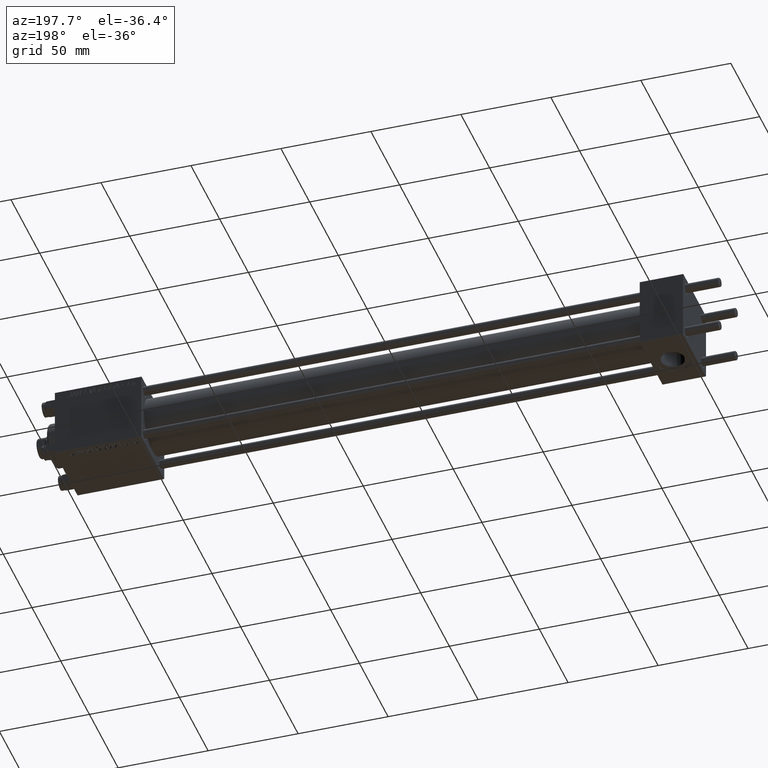
[diagram: clean part render]
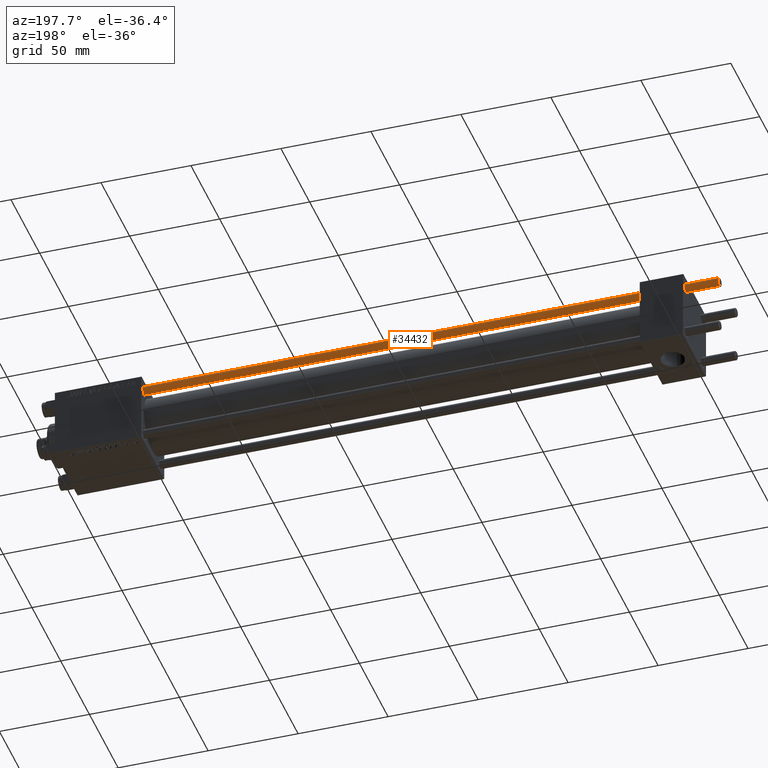
[diagram: same view with one face highlighted and labeled with its STEP entity id]
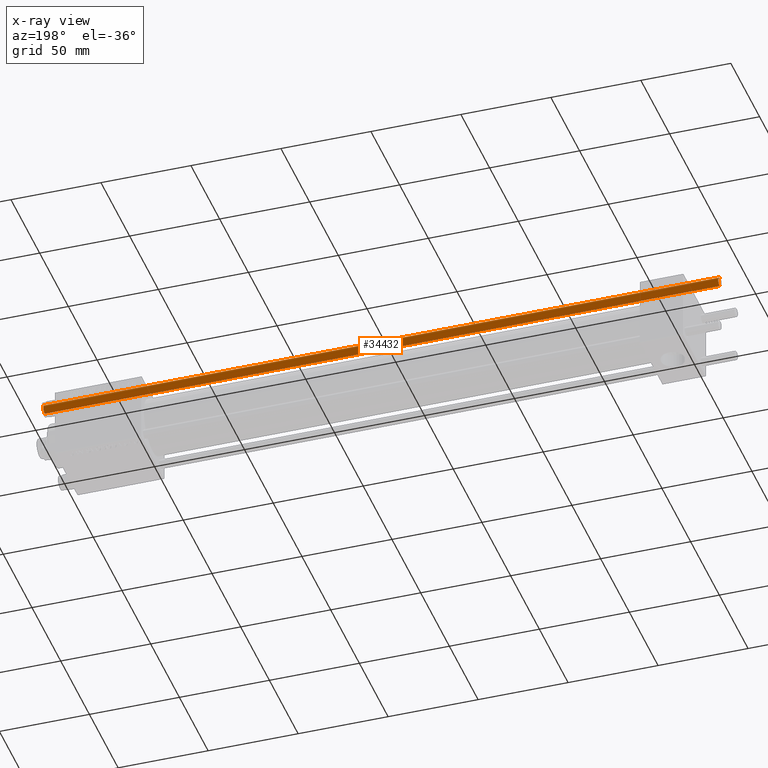
[diagram: x-ray of the same camera — body ghosted, the highlighted face saturated]
A machine part, auxiliary view. The second image highlights one B-rep face of the part: STEP entity #34432.
The next image is the same camera in x-ray: the body ghosted, the highlighted face saturated — about 0% of this face is hidden behind the body in this view.
In plain terms, the highlighted cylindrical surface (edge-blend (fillet) strip) has radius 2.5 mm, axis along (-1, -0, -0).
Its self-contained STEP definition (entity closure, byte-faithful):
#29 = FACE_OUTER_BOUND ( 'NONE', #4673, .T. ) ;
#2603 = AXIS2_PLACEMENT_3D ( 'NONE', #15418, #26752, #19688 ) ;
#4673 = EDGE_LOOP ( 'NONE', ( #25441, #46949, #20816, #23322 ) ) ;
#8013 = DIRECTION ( 'NONE',  ( -0.000000000000000000, -0.000000000000000000, 1.000000000000000000 ) ) ;
#9291 = VERTEX_POINT ( 'NONE', #12544 ) ;
#9445 = EDGE_CURVE ( 'NONE', #34194, #27214, #9513, .T. ) ;
#9513 = LINE ( 'NONE', #40209, #12189 ) ;
#9853 = CIRCLE ( 'NONE', #2603, 2.500000000000000000 ) ;
#12189 = VECTOR ( 'NONE', #21081, 1000.000000000000000 ) ;
#12544 = CARTESIAN_POINT ( 'NONE',  ( -2.500000000000000000, 0.000000000000000000, 0.4999999999999449329 ) ) ;
#15418 = CARTESIAN_POINT ( 'NONE',  ( 0.000000000000000000, 0.000000000000000000, 375.5000000000000568 ) ) ;
#15552 = DIRECTION ( 'NONE',  ( 1.000000000000000000, 0.000000000000000000, 0.000000000000000000 ) ) ;
#16126 = CARTESIAN_POINT ( 'NONE',  ( -2.500000000000000000, 0.000000000000000000, 376.0000000000000000 ) ) ;
#19688 = DIRECTION ( 'NONE',  ( 1.000000000000000000, 0.000000000000000000, 0.000000000000000000 ) ) ;
#20816 = ORIENTED_EDGE ( 'NONE', *, *, #38730, .T. ) ;
#21081 = DIRECTION ( 'NONE',  ( -0.000000000000000000, -0.000000000000000000, -1.000000000000000000 ) ) ;
#22244 = EDGE_CURVE ( 'NONE', #25066, #34194, #9853, .T. ) ;
#23322 = ORIENTED_EDGE ( 'NONE', *, *, #32080, .F. ) ;
#25066 = VERTEX_POINT ( 'NONE', #30690 ) ;
#25441 = ORIENTED_EDGE ( 'NONE', *, *, #22244, .T. ) ;
#26127 = VECTOR ( 'NONE', #46361, 1000.000000000000000 ) ;
#26704 = CYLINDRICAL_SURFACE ( 'NONE', #47909, 2.500000000000000000 ) ;
#26752 = DIRECTION ( 'NONE',  ( 0.000000000000000000, 0.000000000000000000, -1.000000000000000000 ) ) ;
#26951 = CARTESIAN_POINT ( 'NONE',  ( 0.000000000000000000, 0.000000000000000000, 376.0000000000000000 ) ) ;
#27214 = VERTEX_POINT ( 'NONE', #46700 ) ;
#29043 = CARTESIAN_POINT ( 'NONE',  ( 2.500000000000000000, 3.061616997868383141E-16, 375.5000000000000568 ) ) ;
#29500 = CIRCLE ( 'NONE', #35148, 2.500000000000000000 ) ;
#30690 = CARTESIAN_POINT ( 'NONE',  ( -2.500000000000000000, 0.000000000000000000, 375.5000000000000568 ) ) ;
#30995 = LINE ( 'NONE', #16126, #26127 ) ;
#32080 = EDGE_CURVE ( 'NONE', #25066, #9291, #30995, .T. ) ;
#33512 = DIRECTION ( 'NONE',  ( -1.000000000000000000, 0.000000000000000000, 0.000000000000000000 ) ) ;
#34194 = VERTEX_POINT ( 'NONE', #29043 ) ;
#34432 = ADVANCED_FACE ( 'NONE', ( #29 ), #26704, .T. ) ;
#35148 = AXIS2_PLACEMENT_3D ( 'NONE', #35866, #8013, #15552 ) ;
#35866 = CARTESIAN_POINT ( 'NONE',  ( 0.000000000000000000, 0.000000000000000000, 0.4999999999999449329 ) ) ;
#38730 = EDGE_CURVE ( 'NONE', #27214, #9291, #29500, .T. ) ;
#40209 = CARTESIAN_POINT ( 'NONE',  ( 2.500000000000000000, 3.061616997868383141E-16, 376.0000000000000000 ) ) ;
#45343 = DIRECTION ( 'NONE',  ( -0.000000000000000000, -0.000000000000000000, -1.000000000000000000 ) ) ;
#46361 = DIRECTION ( 'NONE',  ( -0.000000000000000000, -0.000000000000000000, -1.000000000000000000 ) ) ;
#46700 = CARTESIAN_POINT ( 'NONE',  ( 2.500000000000000000, 3.061616997868383141E-16, 0.4999999999999449329 ) ) ;
#46949 = ORIENTED_EDGE ( 'NONE', *, *, #9445, .T. ) ;
#47909 = AXIS2_PLACEMENT_3D ( 'NONE', #26951, #45343, #33512 ) ;